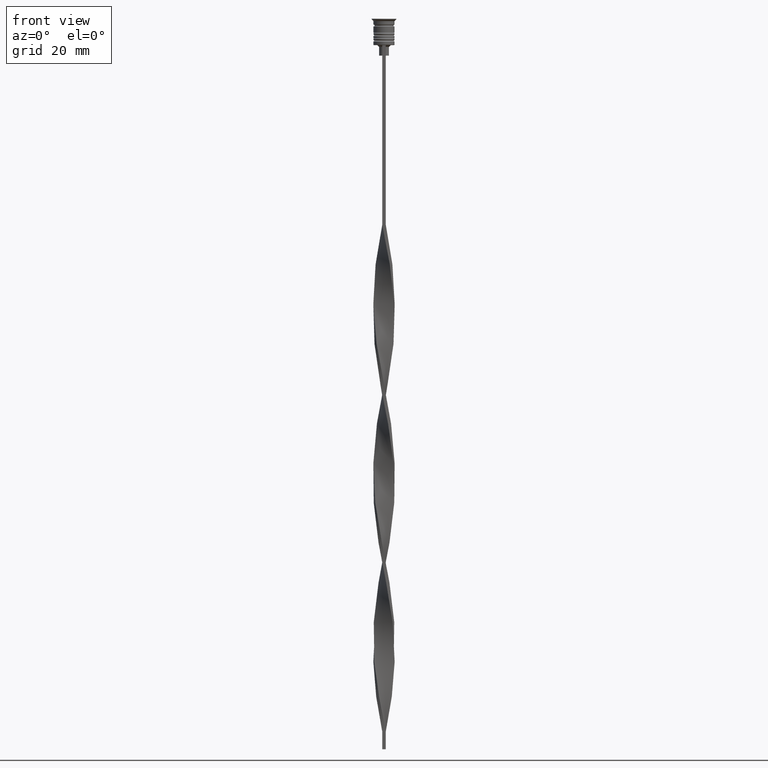
[diagram: clean part render]
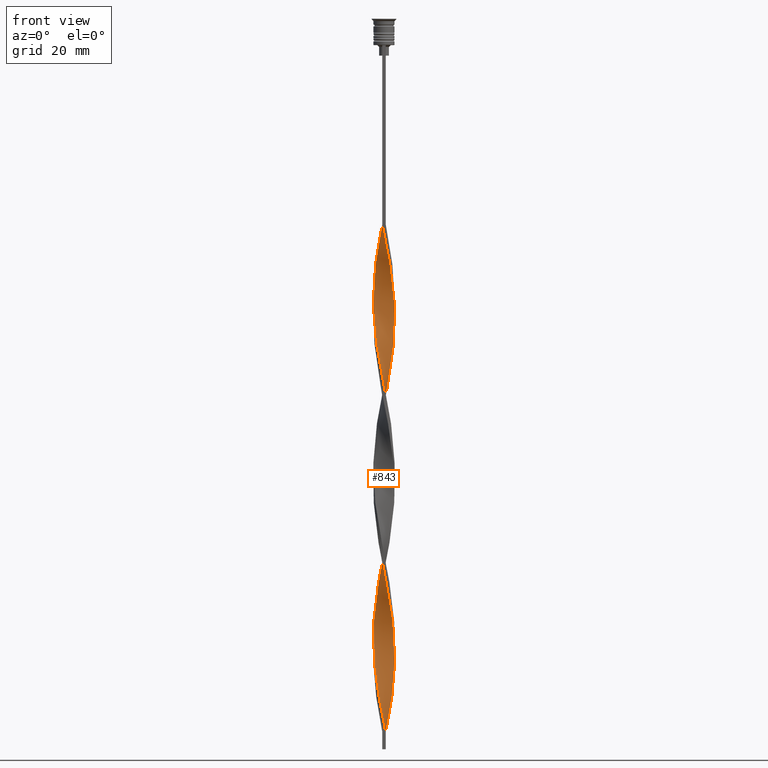
[diagram: same view with one face highlighted and labeled with its STEP entity id]
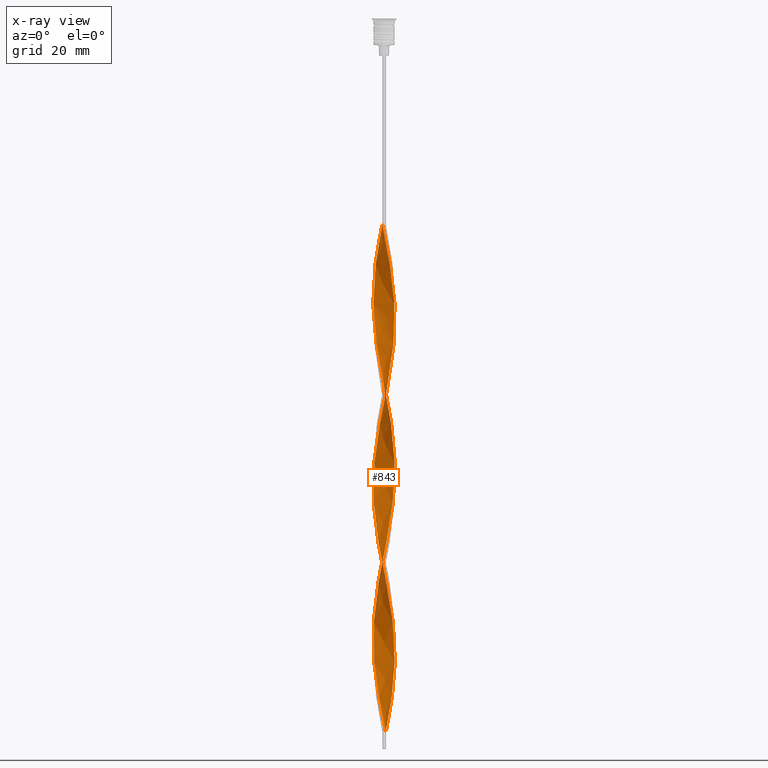
[diagram: x-ray of the same camera — body ghosted, the highlighted face saturated]
A machine part, front view. The second image highlights one B-rep face of the part: STEP entity #843.
The next image is the same camera in x-ray: the body ghosted, the highlighted face saturated — about 0% of this face is hidden behind the body in this view.
In plain terms, the highlighted face is a freeform B-spline surface patch.
Its self-contained STEP definition (entity closure, byte-faithful):
#12 = CARTESIAN_POINT ( 'NONE',  ( -2.628006467404950364, -1.556601299988307208, -88.14705882352940591 ) ) ;
#16 = CARTESIAN_POINT ( 'NONE',  ( 3.053821120486486240, 0.06001802994261470209, -181.3235294117646959 ) ) ;
#48 = CARTESIAN_POINT ( 'NONE',  ( -2.462620696176917701, -1.784796713007145819, -185.5588235294117396 ) ) ;
#54 = CARTESIAN_POINT ( 'NONE',  ( 2.390591389550001722, 1.880178929838698387, -191.2058823529411598 ) ) ;
#56 = CARTESIAN_POINT ( 'NONE',  ( 2.390591389550001722, 1.880178929838698387, -95.20588235294117396 ) ) ;
#66 = CARTESIAN_POINT ( 'NONE',  ( -2.908359051953456564, 0.8896334216520835891, -171.4411764705882035 ) ) ;
#78 = CARTESIAN_POINT ( 'NONE',  ( 1.307479267857235561, 2.760420903407855064, -102.2647058823529420 ) ) ;
#89 = CARTESIAN_POINT ( 'NONE',  ( -1.154187920767260067, -2.813867488627520785, -194.0294117647058556 ) ) ;
#94 = CARTESIAN_POINT ( 'NONE',  ( 3.033336708616754418, -0.2210620097576117826, -179.9117647058823195 ) ) ;
#104 = CARTESIAN_POINT ( 'NONE',  ( -3.022308424554498441, 0.3400761486298386482, -174.2647058823529278 ) ) ;
#109 = CARTESIAN_POINT ( 'NONE',  ( -2.908359051953456564, 0.8896334216520835891, -75.44117647058823195 ) ) ;
#127 = CARTESIAN_POINT ( 'NONE',  ( 1.042735103291661414, -2.857044540143419908, -109.3235294117646959 ) ) ;
#146 = CARTESIAN_POINT ( 'NONE',  ( -2.825922375284401156, 1.159132575987103841, -74.02941176470586981 ) ) ;
#147 = CARTESIAN_POINT ( 'NONE',  ( -1.792442958670038555, -2.473170806831126889, -147.4411764705882320 ) ) ;
#164 = CARTESIAN_POINT ( 'NONE',  ( -2.869284401559882625, -1.047202283617009844, -85.32352941176469585 ) ) ;
#165 = CARTESIAN_POINT ( 'NONE',  ( 0.5000000000000004441, 3.000000000000000000, -106.4999999999999858 ) ) ;
#186 = CARTESIAN_POINT ( 'NONE',  ( 2.869284401559882625, -1.047202283617009400, -175.6764705882353041 ) ) ;
#197 = CARTESIAN_POINT ( 'NONE',  ( 0.5000000000000004441, 3.000000000000000000, -202.4999999999999716 ) ) ;
#203 = CARTESIAN_POINT ( 'NONE',  ( 1.792442958670038999, -2.473170806831127333, -113.5588235294117396 ) ) ;
#204 = CARTESIAN_POINT ( 'NONE',  ( -2.564815624776292768, -1.658658015008195763, -141.7941176470588118 ) ) ;
#207 = CARTESIAN_POINT ( 'NONE',  ( -3.012852296747023484, 0.5021420494578379135, -130.5000000000000000 ) ) ;
#218 = CARTESIAN_POINT ( 'NONE',  ( -2.092734363651090668, -2.206912522777888963, -188.3823529411764355 ) ) ;
#219 = CARTESIAN_POINT ( 'NONE',  ( 2.216367154323709787, -2.101699844669203454, -116.3823529411764781 ) ) ;
#224 = CARTESIAN_POINT ( 'NONE',  ( -3.022308424554498441, -0.3400761486298386482, -134.7352941176470722 ) ) ;
#239 = CARTESIAN_POINT ( 'NONE',  ( -2.297234924948885926, -2.012992126025985762, -186.9705882352941444 ) ) ;
#240 = CARTESIAN_POINT ( 'NONE',  ( -1.307479267857234895, 2.760420903407855509, -62.73529411764705799 ) ) ;
#243 = CARTESIAN_POINT ( 'NONE',  ( -3.033336708616754418, 0.2210620097576128096, -131.9117647058823479 ) ) ;
#258 = CARTESIAN_POINT ( 'NONE',  ( 0.6174888838592811346, 2.978037521306644120, -148.8529411764705799 ) ) ;
#259 = CARTESIAN_POINT ( 'NONE',  ( -1.888233802353294744, -2.400832919529793941, -93.79411764705881183 ) ) ;
#263 = CARTESIAN_POINT ( 'NONE',  ( -2.990795728622511973, -0.6201342673170625597, -136.1470588235294201 ) ) ;
#275 = CARTESIAN_POINT ( 'NONE',  ( -1.651582472329342632, -2.553874573485255706, -191.2058823529411598 ) ) ;
#276 = CARTESIAN_POINT ( 'NONE',  ( -2.941068349153452832, -0.7746721665374231014, -83.91176470588234793 ) ) ;
#280 = CARTESIAN_POINT ( 'NONE',  ( -1.549961113263637058, -2.616795855119490533, -148.8529411764705799 ) ) ;
#283 = CARTESIAN_POINT ( 'NONE',  ( 0.7779909387260891540, 2.953668176878986973, -105.0882352941176521 ) ) ;
#295 = CARTESIAN_POINT ( 'NONE',  ( 2.462620696176917257, 1.784796713007146707, -137.5588235294117680 ) ) ;
#299 = CARTESIAN_POINT ( 'NONE',  ( 1.792442958670039665, 2.473170806831126445, -195.4411764705882604 ) ) ;
#320 = CARTESIAN_POINT ( 'NONE',  ( 2.869284401559882625, -1.047202283617009400, -79.67647058823528994 ) ) ;
#330 = CARTESIAN_POINT ( 'NONE',  ( -2.990795728622511973, 0.6201342673170636699, -172.8529411764705799 ) ) ;
#335 = CARTESIAN_POINT ( 'NONE',  ( 0.05976200360776001697, -3.040794057959990582, -61.32352941176470296 ) ) ;
#336 = CARTESIAN_POINT ( 'NONE',  ( 2.748645434482416050, -1.301901791802658082, -78.26470588235292780 ) ) ;
#347 = CARTESIAN_POINT ( 'NONE',  ( -1.549961113263636836, 2.616795855119490533, -160.1470588235293917 ) ) ;
#349 = EDGE_LOOP ( 'NONE', ( #3084, #1320, #1204, #713 ) ) ;
#353 = CARTESIAN_POINT ( 'NONE',  ( 2.825922375284401156, 1.159132575987104286, -186.9705882352941444 ) ) ;
#355 = CARTESIAN_POINT ( 'NONE',  ( 1.792442958670039443, 2.473170806831126001, -99.44117647058823195 ) ) ;
#365 = CARTESIAN_POINT ( 'NONE',  ( 1.888233802353293633, 2.400832919529794385, -141.7941176470588118 ) ) ;
#372 = CARTESIAN_POINT ( 'NONE',  ( 1.042735103291662080, 2.857044540143419908, -199.6764705882352757 ) ) ;
#388 = CARTESIAN_POINT ( 'NONE',  ( 1.307479267857234673, -2.760420903407855509, -110.7352941176470438 ) ) ;
#404 = CARTESIAN_POINT ( 'NONE',  ( -2.628006467404950364, -1.556601299988307208, -88.14705882352940591 ) ) ;
#421 = CARTESIAN_POINT ( 'NONE',  ( -2.390591389550001278, 1.880178929838698831, -69.79411764705881183 ) ) ;
#422 = CARTESIAN_POINT ( 'NONE',  ( -2.825922375284401156, -1.159132575987104063, -138.9705882352941160 ) ) ;
#442 = CARTESIAN_POINT ( 'NONE',  ( 2.748645434482416050, -1.301901791802658082, -174.2647058823529278 ) ) ;
#456 = CARTESIAN_POINT ( 'NONE',  ( -1.154187920767260067, -2.813867488627520785, -98.02941176470588402 ) ) ;
#457 = CARTESIAN_POINT ( 'NONE',  ( 0.05976200360776001697, -3.040794057959990582, -157.3235294117646959 ) ) ;
#474 = CARTESIAN_POINT ( 'NONE',  ( -2.908359051953456564, 0.8896334216520835891, -171.4411764705882035 ) ) ;
#475 = CARTESIAN_POINT ( 'NONE',  ( 2.462620696176917701, -1.784796713007146041, -171.4411764705882035 ) ) ;
#481 = CARTESIAN_POINT ( 'NONE',  ( 1.414931142305390077, -2.706916227440719691, -164.3823529411764923 ) ) ;
#493 = CARTESIAN_POINT ( 'NONE',  ( 2.748645434482416050, 1.301901791802658082, -134.7352941176470722 ) ) ;
#494 = CARTESIAN_POINT ( 'NONE',  ( -1.651582472329342188, 2.553874573485256150, -117.7941176470588118 ) ) ;
#497 = CARTESIAN_POINT ( 'NONE',  ( -0.05976200360775937165, 3.040794057959990582, -109.3235294117646959 ) ) ;
#509 = CARTESIAN_POINT ( 'NONE',  ( 3.033336708616754418, 0.2210620097576116716, -129.0882352941176521 ) ) ;
#510 = CARTESIAN_POINT ( 'NONE',  ( -1.042735103291662080, 2.857044540143419908, -61.32352941176470296 ) ) ;
#516 = CARTESIAN_POINT ( 'NONE',  ( 1.307479267857235339, 2.760420903407855064, -102.2647058823529420 ) ) ;
#531 = CARTESIAN_POINT ( 'NONE',  ( -1.792442958670039221, 2.473170806831127333, -161.5588235294117680 ) ) ;
#532 = CARTESIAN_POINT ( 'NONE',  ( 1.549961113263637280, -2.616795855119490533, -112.1470588235294059 ) ) ;
#536 = CARTESIAN_POINT ( 'NONE',  ( -2.092734363651089780, 2.206912522777889851, -120.6176470588235219 ) ) ;
#552 = CARTESIAN_POINT ( 'NONE',  ( 3.022308424554498885, -0.3400761486298397585, -126.2647058823529420 ) ) ;
#553 = CARTESIAN_POINT ( 'NONE',  ( -0.7779909387260893761, 2.953668176878985641, -59.91176470588236214 ) ) ;
#557 = CARTESIAN_POINT ( 'NONE',  ( -1.651582472329342188, 2.553874573485256150, -117.7941176470588118 ) ) ;
#561 = CARTESIAN_POINT ( 'NONE',  ( -0.5000000000000001110, -3.000000000000000000, -58.50000000000000000 ) ) ;
#571 = CARTESIAN_POINT ( 'NONE',  ( 2.628006467404950808, 1.556601299988306542, -136.1470588235294201 ) ) ;
#576 = CARTESIAN_POINT ( 'NONE',  ( 0.3415330684894307689, -3.035256292798965916, -62.73529411764705799 ) ) ;
#591 = CARTESIAN_POINT ( 'NONE',  ( -2.825922375284401156, 1.159132575987104063, -74.02941176470586981 ) ) ;
#597 = CARTESIAN_POINT ( 'NONE',  ( 3.053821120486486240, 0.06001802994261470209, -85.32352941176469585 ) ) ;
#598 = CARTESIAN_POINT ( 'NONE',  ( 2.628006467404950364, -1.556601299988307430, -76.85294117647059409 ) ) ;
#610 = CARTESIAN_POINT ( 'NONE',  ( -2.748645434482415606, -1.301901791802658526, -182.7352941176470438 ) ) ;
#618 = VERTEX_POINT ( 'NONE', #2176 ) ;
#619 = CARTESIAN_POINT ( 'NONE',  ( 2.869284401559882625, -1.047202283617009400, -79.67647058823528994 ) ) ;
#620 = CARTESIAN_POINT ( 'NONE',  ( 0.8934446992291309453, -2.920818749814322324, -65.55882352941178226 ) ) ;
#648 = CARTESIAN_POINT ( 'NONE',  ( 1.651582472329341522, 2.553874573485256150, -143.2058823529411882 ) ) ;
#654 = CARTESIAN_POINT ( 'NONE',  ( 3.012852296747023484, -0.5021420494578375804, -178.5000000000000000 ) ) ;
#683 = CARTESIAN_POINT ( 'NONE',  ( -1.651582472329342632, -2.553874573485255706, -191.2058823529411598 ) ) ;
#687 = CARTESIAN_POINT ( 'NONE',  ( -0.3415330684894313795, -3.035256292798966360, -102.2647058823529420 ) ) ;
#705 = CARTESIAN_POINT ( 'NONE',  ( 1.792442958670039443, 2.473170806831126001, -195.4411764705882604 ) ) ;
#713 = ORIENTED_EDGE ( 'NONE', *, *, #1461, .F. ) ;
#722 = CARTESIAN_POINT ( 'NONE',  ( 1.154187920767260067, -2.813867488627520785, -162.9705882352940876 ) ) ;
#743 = CARTESIAN_POINT ( 'NONE',  ( -2.092734363651090668, -2.206912522777888963, -92.38235294117646390 ) ) ;
#744 = CARTESIAN_POINT ( 'NONE',  ( -0.2220090612739108182, -3.046331823121014803, -155.9117647058824048 ) ) ;
#760 = CARTESIAN_POINT ( 'NONE',  ( -2.390591389550001278, 1.880178929838698831, -165.7941176470588118 ) ) ;
#761 = CARTESIAN_POINT ( 'NONE',  ( 0.3415330684894307689, -3.035256292798965916, -158.7352941176470154 ) ) ;
#768 = CARTESIAN_POINT ( 'NONE',  ( 0.8934446992291309453, -2.920818749814322324, -161.5588235294117680 ) ) ;
#781 = CARTESIAN_POINT ( 'NONE',  ( 2.695369000030346740, -1.408895295497649913, -120.6176470588235219 ) ) ;
#782 = CARTESIAN_POINT ( 'NONE',  ( 1.888233802353294744, -2.400832919529793941, -167.2058823529411882 ) ) ;
#788 = CARTESIAN_POINT ( 'NONE',  ( -2.869284401559883069, 1.047202283617008511, -127.6764705882352757 ) ) ;
#802 = CARTESIAN_POINT ( 'NONE',  ( -2.216367154323710231, 2.101699844669202566, -164.3823529411764923 ) ) ;
#803 = CARTESIAN_POINT ( 'NONE',  ( -1.549961113263636836, 2.616795855119490533, -64.14705882352940591 ) ) ;
#806 = CARTESIAN_POINT ( 'NONE',  ( 2.908359051953456564, 0.8896334216520833671, -89.55882352941175384 ) ) ;
#819 = CARTESIAN_POINT ( 'NONE',  ( -0.8934446992291313894, -2.920818749814322324, -195.4411764705882604 ) ) ;
#820 = CARTESIAN_POINT ( 'NONE',  ( -2.869284401559882625, -1.047202283617009844, -85.32352941176469585 ) ) ;
#825 = CARTESIAN_POINT ( 'NONE',  ( 0.05976200360776001697, -3.040794057959990582, -157.3235294117646959 ) ) ;
#840 = CARTESIAN_POINT ( 'NONE',  ( 2.990795728622512417, -0.6201342673170634479, -124.8529411764705799 ) ) ;
#841 = CARTESIAN_POINT ( 'NONE',  ( -2.564815624776293657, 1.658658015008195097, -71.20588235294118817 ) ) ;
#843 = ADVANCED_FACE ( 'NONE', ( #3433 ), #1259, .T. ) ;
#845 = CARTESIAN_POINT ( 'NONE',  ( 3.012852296747023484, -0.5021420494578375804, -82.49999999999998579 ) ) ;
#848 = CARTESIAN_POINT ( 'NONE',  ( 2.462620696176917701, -1.784796713007146041, -75.44117647058823195 ) ) ;
#861 = CARTESIAN_POINT ( 'NONE',  ( -0.8934446992291313894, -2.920818749814322324, -99.44117647058823195 ) ) ;
#880 = CARTESIAN_POINT ( 'NONE',  ( 2.390591389550001278, -1.880178929838698831, -117.7941176470588118 ) ) ;
#884 = CARTESIAN_POINT ( 'NONE',  ( 2.004405056496874504, 2.287435325750164505, -194.0294117647058556 ) ) ;
#886 = CARTESIAN_POINT ( 'NONE',  ( 2.941068349153452388, -0.7746721665374233234, -81.08823529411763786 ) ) ;
#900 = CARTESIAN_POINT ( 'NONE',  ( -2.825922375284401156, 1.159132575987104063, -170.0294117647058556 ) ) ;
#907 = CARTESIAN_POINT ( 'NONE',  ( 1.888233802353294744, -2.400832919529793941, -71.20588235294118817 ) ) ;
#920 = CARTESIAN_POINT ( 'NONE',  ( -0.2220090612739109570, 3.046331823121015692, -153.0882352941176237 ) ) ;
#925 = CARTESIAN_POINT ( 'NONE',  ( 1.307479267857235339, 2.760420903407855064, -198.2647058823529562 ) ) ;
#927 = CARTESIAN_POINT ( 'NONE',  ( 2.004405056496874504, 2.287435325750164505, -98.02941176470588402 ) ) ;
#938 = CARTESIAN_POINT ( 'NONE',  ( -2.628006467404950364, -1.556601299988307208, -184.1470588235293917 ) ) ;
#956 = CARTESIAN_POINT ( 'NONE',  ( -0.8934446992291313894, -2.920818749814322324, -195.4411764705882604 ) ) ;
#962 = CARTESIAN_POINT ( 'NONE',  ( -0.6174888838592809126, -2.978037521306644120, -100.8529411764705941 ) ) ;
#974 = CARTESIAN_POINT ( 'NONE',  ( -2.004405056496874504, 2.287435325750164505, -162.9705882352940876 ) ) ;
#979 = CARTESIAN_POINT ( 'NONE',  ( -3.053821120486486240, 0.06001802994261448004, -79.67647058823528994 ) ) ;
#996 = CARTESIAN_POINT ( 'NONE',  ( 2.990795728622511973, 0.6201342673170632258, -184.1470588235293917 ) ) ;
#1012 = CARTESIAN_POINT ( 'NONE',  ( -2.297234924948885926, -2.012992126025985762, -90.97058823529411598 ) ) ;
#1013 = CARTESIAN_POINT ( 'NONE',  ( -2.748645434482415606, 1.301901791802659192, -126.2647058823529420 ) ) ;
#1031 = CARTESIAN_POINT ( 'NONE',  ( -1.414931142305390077, -2.706916227440719691, -96.61764705882355031 ) ) ;
#1032 = CARTESIAN_POINT ( 'NONE',  ( -2.941068349153452832, 0.7746721665374232124, -129.0882352941176521 ) ) ;
#1053 = CARTESIAN_POINT ( 'NONE',  ( -2.004405056496874504, 2.287435325750164505, -162.9705882352940876 ) ) ;
#1054 = CARTESIAN_POINT ( 'NONE',  ( 1.414931142305390299, -2.706916227440719691, -164.3823529411764923 ) ) ;
#1068 = CARTESIAN_POINT ( 'NONE',  ( 3.053821120486486684, -0.06001802994261339758, -127.6764705882352757 ) ) ;
#1069 = CARTESIAN_POINT ( 'NONE',  ( 3.033336708616754418, -0.2210620097576117826, -179.9117647058823195 ) ) ;
#1075 = CARTESIAN_POINT ( 'NONE',  ( 2.825922375284401156, 1.159132575987104286, -90.97058823529411598 ) ) ;
#1083 = CARTESIAN_POINT ( 'NONE',  ( -0.5000000000000001110, -3.000000000000000000, -58.50000000000000000 ) ) ;
#1087 = CARTESIAN_POINT ( 'NONE',  ( 2.390591389550001278, -1.880178929838698831, -117.7941176470588118 ) ) ;
#1088 = CARTESIAN_POINT ( 'NONE',  ( -0.05976200360776012799, -3.040794057959990582, -103.6764705882352899 ) ) ;
#1093 = CARTESIAN_POINT ( 'NONE',  ( -2.216367154323710231, -2.101699844669202566, -144.6176470588235361 ) ) ;
#1108 = CARTESIAN_POINT ( 'NONE',  ( -3.022308424554498441, 0.3400761486298386482, -174.2647058823529278 ) ) ;
#1109 = CARTESIAN_POINT ( 'NONE',  ( 1.042735103291662080, 2.857044540143419908, -199.6764705882352757 ) ) ;
#1113 = CARTESIAN_POINT ( 'NONE',  ( 1.042735103291662080, 2.857044540143419908, -103.6764705882352899 ) ) ;
#1126 = CARTESIAN_POINT ( 'NONE',  ( -2.990795728622512417, 0.6201342673170636699, -172.8529411764705799 ) ) ;
#1127 = CARTESIAN_POINT ( 'NONE',  ( -1.414931142305390299, -2.706916227440719691, -96.61764705882353610 ) ) ;
#1131 = CARTESIAN_POINT ( 'NONE',  ( 1.888233802353294744, -2.400832919529793941, -167.2058823529411882 ) ) ;
#1146 = CARTESIAN_POINT ( 'NONE',  ( 3.033336708616754418, 0.2210620097576116716, -129.0882352941176521 ) ) ;
#1150 = CARTESIAN_POINT ( 'NONE',  ( 1.792442958670039665, 2.473170806831126445, -99.44117647058823195 ) ) ;
#1154 = CARTESIAN_POINT ( 'NONE',  ( 1.888233802353294744, -2.400832919529793941, -71.20588235294118817 ) ) ;
#1165 = CARTESIAN_POINT ( 'NONE',  ( -1.651582472329342632, -2.553874573485255706, -95.20588235294117396 ) ) ;
#1170 = CARTESIAN_POINT ( 'NONE',  ( 2.216367154323710231, 2.101699844669202566, -192.6176470588235077 ) ) ;
#1173 = CARTESIAN_POINT ( 'NONE',  ( -0.5000000000000001110, -3.000000000000000000, -58.50000000000000000 ) ) ;
#1181 = CARTESIAN_POINT ( 'NONE',  ( -1.414931142305390299, -2.706916227440719691, -192.6176470588235077 ) ) ;
#1186 = CARTESIAN_POINT ( 'NONE',  ( 2.564815624776293657, 1.658658015008195097, -189.7941176470588118 ) ) ;
#1190 = CARTESIAN_POINT ( 'NONE',  ( 0.05976200360776001697, -3.040794057959990582, -61.32352941176470296 ) ) ;
#1203 = CARTESIAN_POINT ( 'NONE',  ( -2.297234924948886370, -2.012992126025985762, -186.9705882352941444 ) ) ;
#1204 = ORIENTED_EDGE ( 'NONE', *, *, #2549, .F. ) ;
#1210 = CARTESIAN_POINT ( 'NONE',  ( 1.154187920767260067, -2.813867488627520785, -66.97058823529411598 ) ) ;
#1216 = EDGE_CURVE ( 'NONE', #3203, #3543, #2514, .T. ) ;
#1222 = CARTESIAN_POINT ( 'NONE',  ( -3.012852296747023484, -0.5021420494578371363, -178.4999999999999716 ) ) ;
#1231 = CARTESIAN_POINT ( 'NONE',  ( 3.053821120486486240, 0.06001802994261470209, -181.3235294117646674 ) ) ;
#1239 = CARTESIAN_POINT ( 'NONE',  ( -0.5000000000000001110, 3.000000000000000000, -58.50000000000000000 ) ) ;
#1258 = CARTESIAN_POINT ( 'NONE',  ( -1.888233802353294744, -2.400832919529793941, -189.7941176470587834 ) ) ;
#1259 =( BOUNDED_SURFACE ( )  B_SPLINE_SURFACE ( 1, 2, ( 
 ( #561, #3492, #335, #576, #1437, #3191, #1210, #2019, #2645, #907, #3454, #3471, #848, #2868, #2054, #619, #886, #2320, #1775, #597, #3170, #1456, #3210, #1494, #2360, #2608, #56, #3513, #927, #355, #1516, #78, #2003, #283, #165, #1582, #2467, #3011, #3615, #2448, #2218, #1655, #494, #1317, #1618, #3650, #2734, #3046, #1013, #3596, #1032, #3370, #1936, #3297, #2486, #3068, #3315, #422, #2185, #204, #2166, #1638, #1898, #147, #3336, #2379, #1861, #3634, #3354, #744, #457, #761, #2770, #1298, #722, #1054, #1879, #782, #2503, #3088, #475, #3029, #442, #186, #1599, #2805, #1069, #1231, #3531, #996, #1336, #2201, #2147, #1917, #2750, #2789, #1356, #705, #3708, #3690, #1109, #3406, #1672 ),
 ( #1689, #553, #510, #240, #803, #2841, #1430, #3464, #2561, #841, #2273, #591, #2599, #1956, #3105, #1746, #1727, #2256, #276, #820, #3164, #12, #1390, #2822, #2029, #259, #1165, #1127, #3426, #861, #1372, #1993, #1088, #2295, #2541, #3144, #1973, #3124, #532, #2879, #1708, #219, #880, #1410, #2522, #2862, #3182, #2236, #2583, #3727, #1146, #3389, #3445, #2013, #3669, #571, #295, #1449, #2313, #365, #648, #1804, #3556, #2620, #2656, #2676, #1821, #920, #1785, #2636, #3523, #1527, #347, #1767, #974, #1486, #2935, #3201, #1508, #900, #66, #330, #104, #3275, #2124, #1222, #3240, #1542, #610, #938, #48, #1203, #2372, #1258, #683, #1181, #89, #956, #2352, #2047, #2087, #2973, #3504 ) ),
 .UNSPECIFIED., .F., .F., .F. ) 
 B_SPLINE_SURFACE_WITH_KNOTS ( ( 2, 2 ),
 ( 3, 2, 2, 2, 2, 2, 2, 2, 2, 2, 2, 2, 2, 2, 2, 2, 2, 2, 2, 2, 2, 2, 2, 2, 2, 2, 2, 2, 2, 2, 2, 2, 2, 2, 2, 2, 2, 2, 2, 2, 2, 2, 2, 2, 2, 2, 2, 2, 2, 2, 2, 3 ),
 ( 0.000000000000000000, 1.000000000000000000 ),
 ( 0.000000000000000000, 0.01470588235294117627, 0.02941176470588235253, 0.04411764705882353227, 0.05882352941176470507, 0.07352941176470588480, 0.08823529411764706454, 0.1029411764705882304, 0.1176470588235294101, 0.1323529411764705899, 0.1470588235294117696, 0.1617647058823529493, 0.1764705882352941291, 0.1911764705882352811, 0.2058823529411764608, 0.2205882352941176405, 0.2352941176470588203, 0.2500000000000000000, 0.2647058823529411797, 0.2794117647058823595, 0.2941176470588235392, 0.3088235294117647189, 0.3235294117647058987, 0.3382352941176470784, 0.3529411764705882582, 0.3676470588235294379, 0.3823529411764705621, 0.3970588235294117418, 0.4117647058823529216, 0.4264705882352941013, 0.4411764705882352811, 0.4558823529411764608, 0.4705882352941176405, 0.4852941176470588203, 0.5000000000000000000, 0.5147058823529411242, 0.5294117647058823595, 0.5441176470588234837, 0.5588235294117647189, 0.5735294117647058432, 0.5882352941176470784, 0.6029411764705882026, 0.6176470588235294379, 0.6323529411764705621, 0.6470588235294117974, 0.6617647058823529216, 0.6764705882352941568, 0.6911764705882352811, 0.7058823529411765163, 0.7205882352941176405, 0.7352941176470588758, 0.7500000000000000000 ),
 .UNSPECIFIED. ) 
 GEOMETRIC_REPRESENTATION_ITEM ( )  RATIONAL_B_SPLINE_SURFACE ( (
 ( 1.000000000000000000, 0.9957341762950344677, 1.000000000000000000, 0.9957341762950344677, 1.000000000000000000, 0.9957341762950344677, 1.000000000000000000, 0.9957341762950344677, 1.000000000000000000, 0.9957341762950344677, 1.000000000000000000, 0.9957341762950344677, 1.000000000000000000, 0.9957341762950344677, 1.000000000000000000, 0.9957341762950344677, 1.000000000000000000, 0.9957341762950344677, 1.000000000000000000, 0.9957341762950344677, 1.000000000000000000, 0.9957341762950344677, 1.000000000000000000, 0.9957341762950344677, 1.000000000000000000, 0.9957341762950344677, 1.000000000000000000, 0.9957341762950344677, 1.000000000000000000, 0.9957341762950344677, 1.000000000000000000, 0.9957341762950344677, 1.000000000000000000, 0.9957341762950344677, 1.000000000000000000, 0.9957341762950344677, 1.000000000000000000, 0.9957341762950344677, 1.000000000000000000, 0.9957341762950344677, 1.000000000000000000, 0.9957341762950344677, 1.000000000000000000, 0.9957341762950344677, 1.000000000000000000, 0.9957341762950344677, 1.000000000000000000, 0.9957341762950344677, 1.000000000000000000, 0.9957341762950344677, 1.000000000000000000, 0.9957341762950344677, 1.000000000000000000, 0.9957341762950344677, 1.000000000000000000, 0.9957341762950344677, 1.000000000000000000, 0.9957341762950344677, 1.000000000000000000, 0.9957341762950344677, 1.000000000000000000, 0.9957341762950344677, 1.000000000000000000, 0.9957341762950344677, 1.000000000000000000, 0.9957341762950344677, 1.000000000000000000, 0.9957341762950344677, 1.000000000000000000, 0.9957341762950344677, 1.000000000000000000, 0.9957341762950344677, 1.000000000000000000, 0.9957341762950344677, 1.000000000000000000, 0.9957341762950344677, 1.000000000000000000, 0.9957341762950344677, 1.000000000000000000, 0.9957341762950344677, 1.000000000000000000, 0.9957341762950344677, 1.000000000000000000, 0.9957341762950344677, 1.000000000000000000, 0.9957341762950344677, 1.000000000000000000, 0.9957341762950344677, 1.000000000000000000, 0.9957341762950344677, 1.000000000000000000, 0.9957341762950344677, 1.000000000000000000, 0.9957341762950344677, 1.000000000000000000, 0.9957341762950344677, 1.000000000000000000, 0.9957341762950344677, 1.000000000000000000, 0.9957341762950344677, 1.000000000000000000, 0.9957341762950344677, 1.000000000000000000),
 ( 1.000000000000000000, 0.9957341762950344677, 1.000000000000000000, 0.9957341762950344677, 1.000000000000000000, 0.9957341762950344677, 1.000000000000000000, 0.9957341762950344677, 1.000000000000000000, 0.9957341762950344677, 1.000000000000000000, 0.9957341762950344677, 1.000000000000000000, 0.9957341762950344677, 1.000000000000000000, 0.9957341762950344677, 1.000000000000000000, 0.9957341762950344677, 1.000000000000000000, 0.9957341762950344677, 1.000000000000000000, 0.9957341762950344677, 1.000000000000000000, 0.9957341762950344677, 1.000000000000000000, 0.9957341762950344677, 1.000000000000000000, 0.9957341762950344677, 1.000000000000000000, 0.9957341762950344677, 1.000000000000000000, 0.9957341762950344677, 1.000000000000000000, 0.9957341762950344677, 1.000000000000000000, 0.9957341762950344677, 1.000000000000000000, 0.9957341762950344677, 1.000000000000000000, 0.9957341762950344677, 1.000000000000000000, 0.9957341762950344677, 1.000000000000000000, 0.9957341762950344677, 1.000000000000000000, 0.9957341762950344677, 1.000000000000000000, 0.9957341762950344677, 1.000000000000000000, 0.9957341762950344677, 1.000000000000000000, 0.9957341762950344677, 1.000000000000000000, 0.9957341762950344677, 1.000000000000000000, 0.9957341762950344677, 1.000000000000000000, 0.9957341762950344677, 1.000000000000000000, 0.9957341762950344677, 1.000000000000000000, 0.9957341762950344677, 1.000000000000000000, 0.9957341762950344677, 1.000000000000000000, 0.9957341762950344677, 1.000000000000000000, 0.9957341762950344677, 1.000000000000000000, 0.9957341762950344677, 1.000000000000000000, 0.9957341762950344677, 1.000000000000000000, 0.9957341762950344677, 1.000000000000000000, 0.9957341762950344677, 1.000000000000000000, 0.9957341762950344677, 1.000000000000000000, 0.9957341762950344677, 1.000000000000000000, 0.9957341762950344677, 1.000000000000000000, 0.9957341762950344677, 1.000000000000000000, 0.9957341762950344677, 1.000000000000000000, 0.9957341762950344677, 1.000000000000000000, 0.9957341762950344677, 1.000000000000000000, 0.9957341762950344677, 1.000000000000000000, 0.9957341762950344677, 1.000000000000000000, 0.9957341762950344677, 1.000000000000000000, 0.9957341762950344677, 1.000000000000000000, 0.9957341762950344677, 1.000000000000000000, 0.9957341762950344677, 1.000000000000000000) ) ) 
 REPRESENTATION_ITEM ( '' )  SURFACE ( )  );
#1281 = CARTESIAN_POINT ( 'NONE',  ( 1.549961113263637280, -2.616795855119490533, -112.1470588235294059 ) ) ;
#1298 = CARTESIAN_POINT ( 'NONE',  ( 0.8934446992291309453, -2.920818749814322324, -161.5588235294117396 ) ) ;
#1316 = CARTESIAN_POINT ( 'NONE',  ( -0.5000000000000001110, 3.000000000000000000, -58.50000000000000000 ) ) ;
#1317 = CARTESIAN_POINT ( 'NONE',  ( -1.888233802353294744, 2.400832919529793497, -119.2058823529411455 ) ) ;
#1320 = ORIENTED_EDGE ( 'NONE', *, *, #3196, .T. ) ;
#1336 = CARTESIAN_POINT ( 'NONE',  ( 2.908359051953456564, 0.8896334216520833671, -185.5588235294117396 ) ) ;
#1355 = CARTESIAN_POINT ( 'NONE',  ( -0.2220090612739109570, 3.046331823121016136, -153.0882352941176237 ) ) ;
#1356 = CARTESIAN_POINT ( 'NONE',  ( 2.004405056496874504, 2.287435325750164505, -194.0294117647058556 ) ) ;
#1359 = CARTESIAN_POINT ( 'NONE',  ( -0.5000000000000001110, -3.000000000000000000, -154.4999999999999716 ) ) ;
#1370 = CARTESIAN_POINT ( 'NONE',  ( -1.154187920767260067, -2.813867488627520785, -194.0294117647058556 ) ) ;
#1372 = CARTESIAN_POINT ( 'NONE',  ( -0.6174888838592809126, -2.978037521306644120, -100.8529411764705941 ) ) ;
#1378 = CARTESIAN_POINT ( 'NONE',  ( -2.564815624776292768, -1.658658015008195763, -141.7941176470587834 ) ) ;
#1389 = CARTESIAN_POINT ( 'NONE',  ( -3.053821120486486240, 0.06001802994261448004, -175.6764705882353041 ) ) ;
#1390 = CARTESIAN_POINT ( 'NONE',  ( -2.462620696176917701, -1.784796713007145819, -89.55882352941175384 ) ) ;
#1396 = CARTESIAN_POINT ( 'NONE',  ( -1.792442958670038777, -2.473170806831127333, -147.4411764705882320 ) ) ;
#1409 = CARTESIAN_POINT ( 'NONE',  ( 2.092734363651091112, 2.206912522777888519, -140.3823529411764639 ) ) ;
#1410 = CARTESIAN_POINT ( 'NONE',  ( 2.564815624776293657, -1.658658015008194653, -119.2058823529411455 ) ) ;
#1415 = CARTESIAN_POINT ( 'NONE',  ( -2.004405056496875837, -2.287435325750163617, -146.0294117647058556 ) ) ;
#1429 = CARTESIAN_POINT ( 'NONE',  ( -0.05976200360776012799, -3.040794057959990582, -199.6764705882352757 ) ) ;
#1430 = CARTESIAN_POINT ( 'NONE',  ( -2.004405056496874504, 2.287435325750164505, -66.97058823529411598 ) ) ;
#1434 = CARTESIAN_POINT ( 'NONE',  ( -1.154187920767260289, 2.813867488627520341, -114.9705882352941018 ) ) ;
#1437 = CARTESIAN_POINT ( 'NONE',  ( 0.6174888838592809126, -2.978037521306644120, -64.14705882352940591 ) ) ;
#1444 = DIRECTION ( 'NONE',  ( 0.000000000000000000, 1.000000000000000000, 0.000000000000000000 ) ) ;
#1449 = CARTESIAN_POINT ( 'NONE',  ( 2.297234924948886370, 2.012992126025985318, -138.9705882352941160 ) ) ;
#1456 = CARTESIAN_POINT ( 'NONE',  ( 2.990795728622511973, 0.6201342673170632258, -88.14705882352940591 ) ) ;
#1461 = EDGE_CURVE ( 'NONE', #3203, #3564, #2074, .T. ) ;
#1477 = CARTESIAN_POINT ( 'NONE',  ( 2.941068349153452388, -0.7746721665374233234, -81.08823529411763786 ) ) ;
#1486 = CARTESIAN_POINT ( 'NONE',  ( -2.216367154323710675, 2.101699844669202566, -164.3823529411764923 ) ) ;
#1494 = CARTESIAN_POINT ( 'NONE',  ( 2.825922375284401156, 1.159132575987104286, -90.97058823529413019 ) ) ;
#1508 = CARTESIAN_POINT ( 'NONE',  ( -2.695369000030346740, 1.408895295497649469, -168.6176470588235077 ) ) ;
#1516 = CARTESIAN_POINT ( 'NONE',  ( 1.549961113263636836, 2.616795855119490533, -100.8529411764705941 ) ) ;
#1527 = CARTESIAN_POINT ( 'NONE',  ( -1.307479267857234895, 2.760420903407855509, -158.7352941176470154 ) ) ;
#1542 = CARTESIAN_POINT ( 'NONE',  ( -2.869284401559882625, -1.047202283617009844, -181.3235294117646674 ) ) ;
#1549 = CARTESIAN_POINT ( 'NONE',  ( 0.5000000000000004441, 3.000000000000000000, -202.4999999999999716 ) ) ;
#1562 = CARTESIAN_POINT ( 'NONE',  ( -1.888233802353294744, -2.400832919529793941, -93.79411764705882604 ) ) ;
#1581 = CARTESIAN_POINT ( 'NONE',  ( -0.7779909387260893761, 2.953668176878985641, -59.91176470588236214 ) ) ;
#1582 = CARTESIAN_POINT ( 'NONE',  ( 0.2220090612739105962, 3.046331823121014803, -107.9117647058823621 ) ) ;
#1598 = CARTESIAN_POINT ( 'NONE',  ( -2.216367154323710231, 2.101699844669202566, -68.38235294117646390 ) ) ;
#1599 = CARTESIAN_POINT ( 'NONE',  ( 2.941068349153452388, -0.7746721665374233234, -177.0882352941176237 ) ) ;
#1618 = CARTESIAN_POINT ( 'NONE',  ( -2.092734363651089780, 2.206912522777889851, -120.6176470588235219 ) ) ;
#1637 = CARTESIAN_POINT ( 'NONE',  ( 2.908359051953456564, -0.8896334216520829230, -123.4411764705882177 ) ) ;
#1638 = CARTESIAN_POINT ( 'NONE',  ( -2.216367154323710675, -2.101699844669202566, -144.6176470588235361 ) ) ;
#1643 = CARTESIAN_POINT ( 'NONE',  ( -3.053821120486486240, -0.06001802994261502128, -133.3235294117646959 ) ) ;
#1654 = CARTESIAN_POINT ( 'NONE',  ( 0.8934446992291303902, 2.920818749814322324, -147.4411764705882320 ) ) ;
#1655 = CARTESIAN_POINT ( 'NONE',  ( -1.414931142305389633, 2.706916227440719691, -116.3823529411764781 ) ) ;
#1658 = CARTESIAN_POINT ( 'NONE',  ( -0.3415330684894307689, 3.035256292798965916, -110.7352941176470438 ) ) ;
#1670 = CARTESIAN_POINT ( 'NONE',  ( -2.825922375284401156, 1.159132575987103841, -170.0294117647058840 ) ) ;
#1672 = CARTESIAN_POINT ( 'NONE',  ( 0.5000000000000004441, 3.000000000000000000, -202.4999999999999716 ) ) ;
#1677 = CARTESIAN_POINT ( 'NONE',  ( -0.6174888838592813567, 2.978037521306644120, -112.1470588235294059 ) ) ;
#1688 = CARTESIAN_POINT ( 'NONE',  ( -0.3415330684894313795, -3.035256292798966360, -198.2647058823529562 ) ) ;
#1689 = CARTESIAN_POINT ( 'NONE',  ( -0.5000000000000001110, 3.000000000000000000, -58.50000000000000000 ) ) ;
#1694 = CARTESIAN_POINT ( 'NONE',  ( -2.825922375284401156, -1.159132575987103841, -138.9705882352941160 ) ) ;
#1707 = CARTESIAN_POINT ( 'NONE',  ( -0.5000000000000001110, 3.000000000000000000, -154.4999999999999716 ) ) ;
#1708 = CARTESIAN_POINT ( 'NONE',  ( 2.004405056496874948, -2.287435325750164061, -114.9705882352941018 ) ) ;
#1713 = CARTESIAN_POINT ( 'NONE',  ( 2.004405056496874504, 2.287435325750164505, -98.02941176470588402 ) ) ;
#1727 = CARTESIAN_POINT ( 'NONE',  ( -3.033336708616754862, -0.2210620097576112830, -81.08823529411763786 ) ) ;
#1746 = CARTESIAN_POINT ( 'NONE',  ( -3.053821120486486240, 0.06001802994261448004, -79.67647058823528994 ) ) ;
#1754 = CARTESIAN_POINT ( 'NONE',  ( 2.092734363651089780, -2.206912522777889407, -72.61764705882352189 ) ) ;
#1767 = CARTESIAN_POINT ( 'NONE',  ( -1.792442958670038999, 2.473170806831126889, -161.5588235294117396 ) ) ;
#1773 = CARTESIAN_POINT ( 'NONE',  ( 0.7779909387260891540, 2.953668176878986529, -201.0882352941176237 ) ) ;
#1775 = CARTESIAN_POINT ( 'NONE',  ( 3.033336708616754418, -0.2210620097576117826, -83.91176470588234793 ) ) ;
#1785 = CARTESIAN_POINT ( 'NONE',  ( -0.5000000000000001110, 3.000000000000000000, -154.4999999999999716 ) ) ;
#1804 = CARTESIAN_POINT ( 'NONE',  ( 1.414931142305390743, 2.706916227440719691, -144.6176470588235361 ) ) ;
#1821 = CARTESIAN_POINT ( 'NONE',  ( 0.05976200360775915654, 3.040794057959990582, -151.6764705882353041 ) ) ;
#1825 = CARTESIAN_POINT ( 'NONE',  ( 0.2220090612739113178, -3.046331823121015692, -105.0882352941176521 ) ) ;
#1861 = CARTESIAN_POINT ( 'NONE',  ( -1.042735103291661192, -2.857044540143419908, -151.6764705882353041 ) ) ;
#1878 = CARTESIAN_POINT ( 'NONE',  ( -3.022308424554498441, 0.3400761486298386482, -78.26470588235292780 ) ) ;
#1879 = CARTESIAN_POINT ( 'NONE',  ( 1.651582472329342188, -2.553874573485256150, -165.7941176470588118 ) ) ;
#1897 = CARTESIAN_POINT ( 'NONE',  ( -3.033336708616754862, -0.2210620097576112830, -81.08823529411763786 ) ) ;
#1898 = CARTESIAN_POINT ( 'NONE',  ( -2.004405056496875837, -2.287435325750163617, -146.0294117647058556 ) ) ;
#1916 = CARTESIAN_POINT ( 'NONE',  ( 2.216367154323709343, -2.101699844669203454, -116.3823529411764781 ) ) ;
#1917 = CARTESIAN_POINT ( 'NONE',  ( 2.564815624776293657, 1.658658015008195097, -189.7941176470587834 ) ) ;
#1922 = CARTESIAN_POINT ( 'NONE',  ( -2.908359051953456120, -0.8896334216520842553, -137.5588235294117680 ) ) ;
#1935 = CARTESIAN_POINT ( 'NONE',  ( 1.414931142305390521, 2.706916227440719691, -144.6176470588235361 ) ) ;
#1936 = CARTESIAN_POINT ( 'NONE',  ( -3.033336708616754418, 0.2210620097576128096, -131.9117647058823479 ) ) ;
#1942 = CARTESIAN_POINT ( 'NONE',  ( 2.216367154323710231, 2.101699844669202566, -96.61764705882355031 ) ) ;
#1955 = CARTESIAN_POINT ( 'NONE',  ( 2.869284401559882625, 1.047202283617010066, -133.3235294117646959 ) ) ;
#1956 = CARTESIAN_POINT ( 'NONE',  ( -2.990795728622511973, 0.6201342673170636699, -76.85294117647060830 ) ) ;
#1959 = CARTESIAN_POINT ( 'NONE',  ( 2.695369000030346740, 1.408895295497649247, -92.38235294117646390 ) ) ;
#1971 = CARTESIAN_POINT ( 'NONE',  ( -2.564815624776293657, 1.658658015008195097, -167.2058823529411882 ) ) ;
#1973 = CARTESIAN_POINT ( 'NONE',  ( 1.042735103291661414, -2.857044540143419908, -109.3235294117646959 ) ) ;
#1979 = CARTESIAN_POINT ( 'NONE',  ( -2.941068349153452832, 0.7746721665374232124, -129.0882352941176521 ) ) ;
#1992 = CARTESIAN_POINT ( 'NONE',  ( 2.941068349153452832, 0.7746721665374219912, -131.9117647058823479 ) ) ;
#1993 = CARTESIAN_POINT ( 'NONE',  ( -0.3415330684894314350, -3.035256292798966360, -102.2647058823529420 ) ) ;
#2000 = CARTESIAN_POINT ( 'NONE',  ( -1.307479267857235561, -2.760420903407854620, -150.2647058823528994 ) ) ;
#2003 = CARTESIAN_POINT ( 'NONE',  ( 1.042735103291662080, 2.857044540143419908, -103.6764705882352899 ) ) ;
#2013 = CARTESIAN_POINT ( 'NONE',  ( 2.869284401559882625, 1.047202283617010066, -133.3235294117647243 ) ) ;
#2019 = CARTESIAN_POINT ( 'NONE',  ( 1.414931142305390299, -2.706916227440719691, -68.38235294117646390 ) ) ;
#2029 = CARTESIAN_POINT ( 'NONE',  ( -2.092734363651090668, -2.206912522777888963, -92.38235294117646390 ) ) ;
#2034 = CARTESIAN_POINT ( 'NONE',  ( 0.5000000000000004441, 3.000000000000000000, -202.4999999999999716 ) ) ;
#2038 = CARTESIAN_POINT ( 'NONE',  ( 0.6174888838592809126, -2.978037521306644120, -64.14705882352940591 ) ) ;
#2047 = CARTESIAN_POINT ( 'NONE',  ( -0.3415330684894314350, -3.035256292798966360, -198.2647058823529562 ) ) ;
#2054 = CARTESIAN_POINT ( 'NONE',  ( 2.748645434482416050, -1.301901791802658082, -78.26470588235292780 ) ) ;
#2074 =( BOUNDED_CURVE ( )  B_SPLINE_CURVE ( 2, ( #1173, #2321, #1190, #3472, #2038, #620, #2341, #3493, #3211, #1154, #1754, #2646, #3192, #598, #336, #320, #1477, #845, #3393, #3128, #2529, #3092, #806, #1075, #1959, #2507, #3108, #1942, #1713, #1150, #3731, #516, #1113, #3150, #2222, #2547, #497, #1658, #1677, #2865, #1434, #2828, #557, #3373, #536, #2259, #2808, #2243, #3693, #788, #1979, #207, #243, #1643, #224, #263, #1922, #1694, #2848, #1378, #3673, #1093, #1415, #1396, #280, #2000, #2588, #2566, #1359, #3410, #825, #3711, #2301, #768, #3072, #481, #2792, #1131, #2280, #3654, #3430, #3451, #2318, #3248, #3469, #654, #94, #16, #2924, #2643, #2885, #353, #2961, #1186, #54, #1170, #884, #299, #2337, #925, #372, #1773, #2034 ),
 .UNSPECIFIED., .F., .T. ) 
 B_SPLINE_CURVE_WITH_KNOTS ( ( 3, 2, 2, 2, 2, 2, 2, 2, 2, 2, 2, 2, 2, 2, 2, 2, 2, 2, 2, 2, 2, 2, 2, 2, 2, 2, 2, 2, 2, 2, 2, 2, 2, 2, 2, 2, 2, 2, 2, 2, 2, 2, 2, 2, 2, 2, 2, 2, 2, 2, 2, 3 ),
 ( 0.000000000000000000, 0.01470588235294117453, 0.02941176470588234906, 0.04411764705882353227, 0.05882352941176469813, 0.07352941176470588480, 0.08823529411764706454, 0.1029411764705882443, 0.1176470588235293963, 0.1323529411764705899, 0.1470588235294117696, 0.1617647058823529493, 0.1764705882352941291, 0.1911764705882352811, 0.2058823529411764885, 0.2205882352941176405, 0.2352941176470587925, 0.2500000000000000000, 0.2647058823529411797, 0.2794117647058823595, 0.2941176470588235392, 0.3088235294117647189, 0.3235294117647058987, 0.3382352941176470229, 0.3529411764705882582, 0.3676470588235294379, 0.3823529411764705621, 0.3970588235294117418, 0.4117647058823529771, 0.4264705882352941013, 0.4411764705882352811, 0.4558823529411764608, 0.4705882352941175850, 0.4852941176470588203, 0.5000000000000000000, 0.5147058823529411242, 0.5294117647058823595, 0.5441176470588234837, 0.5588235294117647189, 0.5735294117647058432, 0.5882352941176470784, 0.6029411764705882026, 0.6176470588235294379, 0.6323529411764705621, 0.6470588235294117974, 0.6617647058823529216, 0.6764705882352940458, 0.6911764705882351700, 0.7058823529411765163, 0.7205882352941176405, 0.7352941176470588758, 0.7500000000000000000 ),
 .UNSPECIFIED. ) 
 CURVE ( )  GEOMETRIC_REPRESENTATION_ITEM ( )  RATIONAL_B_SPLINE_CURVE ( ( 1.000000000000000000, 0.9957341762950344677, 1.000000000000000000, 0.9957341762950344677, 1.000000000000000000, 0.9957341762950344677, 1.000000000000000000, 0.9957341762950344677, 1.000000000000000000, 0.9957341762950344677, 1.000000000000000000, 0.9957341762950344677, 1.000000000000000000, 0.9957341762950344677, 1.000000000000000000, 0.9957341762950344677, 1.000000000000000000, 0.9957341762950344677, 1.000000000000000000, 0.9957341762950344677, 1.000000000000000000, 0.9957341762950344677, 1.000000000000000000, 0.9957341762950344677, 1.000000000000000000, 0.9957341762950344677, 1.000000000000000000, 0.9957341762950344677, 1.000000000000000000, 0.9957341762950344677, 1.000000000000000000, 0.9957341762950344677, 1.000000000000000000, 0.9957341762950344677, 1.000000000000000000, 0.9957341762950344677, 1.000000000000000000, 0.9957341762950344677, 1.000000000000000000, 0.9957341762950344677, 1.000000000000000000, 0.9957341762950344677, 1.000000000000000000, 0.9957341762950344677, 1.000000000000000000, 0.9957341762950344677, 1.000000000000000000, 0.9957341762950344677, 1.000000000000000000, 0.9957341762950344677, 1.000000000000000000, 0.9957341762950344677, 1.000000000000000000, 0.9957341762950344677, 1.000000000000000000, 0.9957341762950344677, 1.000000000000000000, 0.9957341762950344677, 1.000000000000000000, 0.9957341762950344677, 1.000000000000000000, 0.9957341762950344677, 1.000000000000000000, 0.9957341762950344677, 1.000000000000000000, 0.9957341762950344677, 1.000000000000000000, 0.9957341762950344677, 1.000000000000000000, 0.9957341762950344677, 1.000000000000000000, 0.9957341762950344677, 1.000000000000000000, 0.9957341762950344677, 1.000000000000000000, 0.9957341762950344677, 1.000000000000000000, 0.9957341762950344677, 1.000000000000000000, 0.9957341762950344677, 1.000000000000000000, 0.9957341762950344677, 1.000000000000000000, 0.9957341762950344677, 1.000000000000000000, 0.9957341762950344677, 1.000000000000000000, 0.9957341762950344677, 1.000000000000000000, 0.9957341762950344677, 1.000000000000000000, 0.9957341762950344677, 1.000000000000000000, 0.9957341762950344677, 1.000000000000000000, 0.9957341762950344677, 1.000000000000000000, 0.9957341762950344677, 1.000000000000000000, 0.9957341762950344677, 1.000000000000000000, 0.9957341762950344677, 1.000000000000000000 ) ) 
 REPRESENTATION_ITEM ( '' )  );
#2087 = CARTESIAN_POINT ( 'NONE',  ( -0.05976200360776012799, -3.040794057959990582, -199.6764705882352757 ) ) ;
#2109 = CARTESIAN_POINT ( 'NONE',  ( -1.549961113263636836, 2.616795855119490533, -64.14705882352940591 ) ) ;
#2112 = B_SPLINE_CURVE_WITH_KNOTS ( 'NONE', 3,
 ( #1549, #2134, #2380, #3232 ),
 .UNSPECIFIED., .F., .F.,
 ( 4, 4 ),
 ( 0.000000000000000000, 1.000000000000000000 ),
 .UNSPECIFIED. ) ;
#2124 = CARTESIAN_POINT ( 'NONE',  ( -3.033336708616754862, -0.2210620097576112830, -177.0882352941176237 ) ) ;
#2130 = CARTESIAN_POINT ( 'NONE',  ( -2.748645434482415606, -1.301901791802658526, -86.73529411764704378 ) ) ;
#2134 = CARTESIAN_POINT ( 'NONE',  ( 0.5000000000000002220, 1.000000000000000000, -202.4999999999999716 ) ) ;
#2146 = CARTESIAN_POINT ( 'NONE',  ( -1.307479267857234673, 2.760420903407855509, -62.73529411764705799 ) ) ;
#2147 = CARTESIAN_POINT ( 'NONE',  ( 2.695369000030346740, 1.408895295497649247, -188.3823529411764355 ) ) ;
#2166 = CARTESIAN_POINT ( 'NONE',  ( -2.390591389550000834, -1.880178929838698831, -143.2058823529411882 ) ) ;
#2176 = CARTESIAN_POINT ( 'NONE',  ( 0.4999999999999997780, -3.000000000000000000, -202.4999999999999716 ) ) ;
#2184 = CARTESIAN_POINT ( 'NONE',  ( -3.012852296747023484, -0.5021420494578371363, -82.49999999999998579 ) ) ;
#2185 = CARTESIAN_POINT ( 'NONE',  ( -2.695369000030347184, -1.408895295497648581, -140.3823529411764639 ) ) ;
#2200 = CARTESIAN_POINT ( 'NONE',  ( 0.4999999999999997780, -3.000000000000000000, -202.4999999999999716 ) ) ;
#2201 = CARTESIAN_POINT ( 'NONE',  ( 2.825922375284401156, 1.159132575987104286, -186.9705882352941444 ) ) ;
#2217 = CARTESIAN_POINT ( 'NONE',  ( -1.414931142305390077, -2.706916227440719691, -192.6176470588235077 ) ) ;
#2218 = CARTESIAN_POINT ( 'NONE',  ( -1.154187920767260289, 2.813867488627520341, -114.9705882352941018 ) ) ;
#2222 = CARTESIAN_POINT ( 'NONE',  ( 0.5000000000000004441, 3.000000000000000000, -106.4999999999999858 ) ) ;
#2235 = CARTESIAN_POINT ( 'NONE',  ( -1.307479267857234673, 2.760420903407855509, -158.7352941176470438 ) ) ;
#2236 = CARTESIAN_POINT ( 'NONE',  ( 2.990795728622511973, -0.6201342673170634479, -124.8529411764705799 ) ) ;
#2243 = CARTESIAN_POINT ( 'NONE',  ( -2.628006467404950364, 1.556601299988307430, -124.8529411764705799 ) ) ;
#2255 = CARTESIAN_POINT ( 'NONE',  ( -1.888233802353294744, -2.400832919529793941, -189.7941176470588118 ) ) ;
#2256 = CARTESIAN_POINT ( 'NONE',  ( -3.012852296747023484, -0.5021420494578371363, -82.49999999999998579 ) ) ;
#2259 = CARTESIAN_POINT ( 'NONE',  ( -2.297234924948885926, 2.012992126025986206, -122.0294117647058840 ) ) ;
#2271 = CARTESIAN_POINT ( 'NONE',  ( -2.628006467404950364, -1.556601299988307208, -184.1470588235293917 ) ) ;
#2273 = CARTESIAN_POINT ( 'NONE',  ( -2.695369000030346740, 1.408895295497649469, -72.61764705882352189 ) ) ;
#2280 = CARTESIAN_POINT ( 'NONE',  ( 2.092734363651089780, -2.206912522777889407, -168.6176470588235077 ) ) ;
#2295 = CARTESIAN_POINT ( 'NONE',  ( 0.2220090612739113178, -3.046331823121015248, -105.0882352941176521 ) ) ;
#2301 = CARTESIAN_POINT ( 'NONE',  ( 0.6174888838592809126, -2.978037521306644120, -160.1470588235293917 ) ) ;
#2312 = CARTESIAN_POINT ( 'NONE',  ( -0.5000000000000001110, -3.000000000000000000, -58.50000000000000000 ) ) ;
#2313 = CARTESIAN_POINT ( 'NONE',  ( 2.092734363651091112, 2.206912522777888519, -140.3823529411764639 ) ) ;
#2318 = CARTESIAN_POINT ( 'NONE',  ( 2.748645434482416050, -1.301901791802658082, -174.2647058823529278 ) ) ;
#2320 = CARTESIAN_POINT ( 'NONE',  ( 3.012852296747023484, -0.5021420494578375804, -82.49999999999998579 ) ) ;
#2321 = CARTESIAN_POINT ( 'NONE',  ( -0.2220090612739108182, -3.046331823121015248, -59.91176470588236214 ) ) ;
#2337 = CARTESIAN_POINT ( 'NONE',  ( 1.549961113263636836, 2.616795855119490533, -196.8529411764705515 ) ) ;
#2341 = CARTESIAN_POINT ( 'NONE',  ( 1.154187920767260067, -2.813867488627520785, -66.97058823529411598 ) ) ;
#2352 = CARTESIAN_POINT ( 'NONE',  ( -0.6174888838592809126, -2.978037521306644120, -196.8529411764705515 ) ) ;
#2360 = CARTESIAN_POINT ( 'NONE',  ( 2.695369000030346740, 1.408895295497649247, -92.38235294117646390 ) ) ;
#2372 = CARTESIAN_POINT ( 'NONE',  ( -2.092734363651090668, -2.206912522777888963, -188.3823529411764355 ) ) ;
#2379 = CARTESIAN_POINT ( 'NONE',  ( -1.307479267857235783, -2.760420903407854620, -150.2647058823529278 ) ) ;
#2380 = CARTESIAN_POINT ( 'NONE',  ( 0.5000000000000000000, -1.000000000000000000, -202.4999999999999716 ) ) ;
#2412 = CARTESIAN_POINT ( 'NONE',  ( -1.042735103291662080, 2.857044540143419908, -61.32352941176470296 ) ) ;
#2420 = VECTOR ( 'NONE', #1444, 1000.000000000000000 ) ;
#2432 = CARTESIAN_POINT ( 'NONE',  ( -2.462620696176917701, -1.784796713007145819, -89.55882352941175384 ) ) ;
#2448 = CARTESIAN_POINT ( 'NONE',  ( -0.8934446992291307232, 2.920818749814322324, -113.5588235294117538 ) ) ;
#2467 = CARTESIAN_POINT ( 'NONE',  ( -0.05976200360775937165, 3.040794057959990582, -109.3235294117646959 ) ) ;
#2486 = CARTESIAN_POINT ( 'NONE',  ( -3.022308424554498441, -0.3400761486298386482, -134.7352941176470722 ) ) ;
#2502 = CARTESIAN_POINT ( 'NONE',  ( -2.695369000030346740, 1.408895295497649469, -168.6176470588235077 ) ) ;
#2503 = CARTESIAN_POINT ( 'NONE',  ( 2.092734363651089780, -2.206912522777889407, -168.6176470588235077 ) ) ;
#2507 = CARTESIAN_POINT ( 'NONE',  ( 2.564815624776293657, 1.658658015008195097, -93.79411764705882604 ) ) ;
#2514 = LINE ( 'NONE', #1083, #2420 ) ;
#2521 = CARTESIAN_POINT ( 'NONE',  ( 2.297234924948885926, 2.012992126025985318, -138.9705882352941160 ) ) ;
#2522 = CARTESIAN_POINT ( 'NONE',  ( 2.695369000030346740, -1.408895295497649913, -120.6176470588235219 ) ) ;
#2529 = CARTESIAN_POINT ( 'NONE',  ( 3.022308424554498885, 0.3400761486298390923, -86.73529411764704378 ) ) ;
#2540 = CARTESIAN_POINT ( 'NONE',  ( -3.033336708616754862, -0.2210620097576112830, -177.0882352941176237 ) ) ;
#2541 = CARTESIAN_POINT ( 'NONE',  ( 0.4999999999999997780, -3.000000000000000000, -106.4999999999999858 ) ) ;
#2547 = CARTESIAN_POINT ( 'NONE',  ( 0.2220090612739105962, 3.046331823121015248, -107.9117647058823621 ) ) ;
#2549 = EDGE_CURVE ( 'NONE', #3564, #618, #2112, .T. ) ;
#2560 = CARTESIAN_POINT ( 'NONE',  ( 1.888233802353293633, 2.400832919529794385, -141.7941176470587834 ) ) ;
#2561 = CARTESIAN_POINT ( 'NONE',  ( -2.390591389550001278, 1.880178929838698831, -69.79411764705881183 ) ) ;
#2566 = CARTESIAN_POINT ( 'NONE',  ( -0.7779909387260895981, -2.953668176878986085, -153.0882352941176237 ) ) ;
#2583 = CARTESIAN_POINT ( 'NONE',  ( 3.022308424554498885, -0.3400761486298397585, -126.2647058823529420 ) ) ;
#2588 = CARTESIAN_POINT ( 'NONE',  ( -1.042735103291661192, -2.857044540143419908, -151.6764705882353041 ) ) ;
#2599 = CARTESIAN_POINT ( 'NONE',  ( -2.908359051953456564, 0.8896334216520835891, -75.44117647058823195 ) ) ;
#2608 = CARTESIAN_POINT ( 'NONE',  ( 2.564815624776293657, 1.658658015008195097, -93.79411764705881183 ) ) ;
#2620 = CARTESIAN_POINT ( 'NONE',  ( 0.8934446992291303902, 2.920818749814322324, -147.4411764705882320 ) ) ;
#2636 = CARTESIAN_POINT ( 'NONE',  ( -0.7779909387260893761, 2.953668176878985641, -155.9117647058824048 ) ) ;
#2643 = CARTESIAN_POINT ( 'NONE',  ( 2.990795728622512417, 0.6201342673170633368, -184.1470588235293917 ) ) ;
#2645 = CARTESIAN_POINT ( 'NONE',  ( 1.651582472329342188, -2.553874573485256150, -69.79411764705881183 ) ) ;
#2646 = CARTESIAN_POINT ( 'NONE',  ( 2.297234924948885926, -2.012992126025985318, -74.02941176470586981 ) ) ;
#2656 = CARTESIAN_POINT ( 'NONE',  ( 0.6174888838592811346, 2.978037521306644120, -148.8529411764705799 ) ) ;
#2676 = CARTESIAN_POINT ( 'NONE',  ( 0.3415330684894318236, 3.035256292798965916, -150.2647058823529278 ) ) ;
#2697 = CARTESIAN_POINT ( 'NONE',  ( -1.792442958670039221, 2.473170806831127333, -65.55882352941178226 ) ) ;
#2714 = CARTESIAN_POINT ( 'NONE',  ( 0.4999999999999997780, -3.000000000000000000, -106.4999999999999858 ) ) ;
#2733 = CARTESIAN_POINT ( 'NONE',  ( -2.564815624776293657, 1.658658015008195097, -71.20588235294118817 ) ) ;
#2734 = CARTESIAN_POINT ( 'NONE',  ( -2.462620696176918589, 1.784796713007145375, -123.4411764705882177 ) ) ;
#2749 = CARTESIAN_POINT ( 'NONE',  ( -2.695369000030346740, 1.408895295497649469, -72.61764705882352189 ) ) ;
#2750 = CARTESIAN_POINT ( 'NONE',  ( 2.390591389550001722, 1.880178929838698387, -191.2058823529411598 ) ) ;
#2769 = CARTESIAN_POINT ( 'NONE',  ( -0.8934446992291313894, -2.920818749814322324, -99.44117647058823195 ) ) ;
#2770 = CARTESIAN_POINT ( 'NONE',  ( 0.6174888838592809126, -2.978037521306644120, -160.1470588235293917 ) ) ;
#2788 = CARTESIAN_POINT ( 'NONE',  ( 3.012852296747023484, 0.5021420494578368032, -130.5000000000000000 ) ) ;
#2789 = CARTESIAN_POINT ( 'NONE',  ( 2.216367154323710675, 2.101699844669202566, -192.6176470588235077 ) ) ;
#2792 = CARTESIAN_POINT ( 'NONE',  ( 1.651582472329342188, -2.553874573485256150, -165.7941176470588118 ) ) ;
#2804 = CARTESIAN_POINT ( 'NONE',  ( -2.462620696176917701, -1.784796713007145819, -185.5588235294117396 ) ) ;
#2805 = CARTESIAN_POINT ( 'NONE',  ( 3.012852296747023484, -0.5021420494578375804, -178.4999999999999716 ) ) ;
#2808 = CARTESIAN_POINT ( 'NONE',  ( -2.462620696176918589, 1.784796713007145375, -123.4411764705882177 ) ) ;
#2821 = CARTESIAN_POINT ( 'NONE',  ( -2.869284401559882625, -1.047202283617009844, -181.3235294117646959 ) ) ;
#2822 = CARTESIAN_POINT ( 'NONE',  ( -2.297234924948886370, -2.012992126025985762, -90.97058823529413019 ) ) ;
#2828 = CARTESIAN_POINT ( 'NONE',  ( -1.414931142305389411, 2.706916227440719691, -116.3823529411764781 ) ) ;
#2840 = CARTESIAN_POINT ( 'NONE',  ( 2.462620696176917257, 1.784796713007146707, -137.5588235294117680 ) ) ;
#2841 = CARTESIAN_POINT ( 'NONE',  ( -1.792442958670038999, 2.473170806831126889, -65.55882352941179647 ) ) ;
#2848 = CARTESIAN_POINT ( 'NONE',  ( -2.695369000030347184, -1.408895295497648581, -140.3823529411764639 ) ) ;
#2861 = CARTESIAN_POINT ( 'NONE',  ( -3.012852296747023484, -0.5021420494578371363, -178.5000000000000000 ) ) ;
#2862 = CARTESIAN_POINT ( 'NONE',  ( 2.825922375284401156, -1.159132575987104508, -122.0294117647058982 ) ) ;
#2865 = CARTESIAN_POINT ( 'NONE',  ( -0.8934446992291307232, 2.920818749814322324, -113.5588235294117396 ) ) ;
#2868 = CARTESIAN_POINT ( 'NONE',  ( 2.628006467404950364, -1.556601299988307652, -76.85294117647060830 ) ) ;
#2879 = CARTESIAN_POINT ( 'NONE',  ( 1.792442958670038777, -2.473170806831126889, -113.5588235294117538 ) ) ;
#2885 = CARTESIAN_POINT ( 'NONE',  ( 2.908359051953456564, 0.8896334216520833671, -185.5588235294117396 ) ) ;
#2924 = CARTESIAN_POINT ( 'NONE',  ( 3.022308424554498885, 0.3400761486298390923, -182.7352941176470438 ) ) ;
#2935 = CARTESIAN_POINT ( 'NONE',  ( -2.390591389550001278, 1.880178929838698831, -165.7941176470588118 ) ) ;
#2961 = CARTESIAN_POINT ( 'NONE',  ( 2.695369000030346740, 1.408895295497649247, -188.3823529411764355 ) ) ;
#2973 = CARTESIAN_POINT ( 'NONE',  ( 0.2220090612739113178, -3.046331823121015248, -201.0882352941176237 ) ) ;
#2977 = CARTESIAN_POINT ( 'NONE',  ( 0.7779909387260895981, -2.953668176878985641, -107.9117647058823621 ) ) ;
#3011 = CARTESIAN_POINT ( 'NONE',  ( -0.3415330684894307689, 3.035256292798965916, -110.7352941176470438 ) ) ;
#3029 = CARTESIAN_POINT ( 'NONE',  ( 2.628006467404950364, -1.556601299988307652, -172.8529411764705799 ) ) ;
#3045 = CARTESIAN_POINT ( 'NONE',  ( -2.941068349153452832, -0.7746721665374231014, -83.91176470588234793 ) ) ;
#3046 = CARTESIAN_POINT ( 'NONE',  ( -2.628006467404950364, 1.556601299988307430, -124.8529411764705799 ) ) ;
#3056 =( BOUNDED_CURVE ( )  B_SPLINE_CURVE ( 2, ( #1316, #1581, #2412, #2146, #2109, #2697, #3314, #1598, #421, #2733, #2749, #146, #109, #3561, #1878, #979, #1897, #2184, #3045, #164, #2130, #404, #2432, #1012, #743, #1562, #3280, #1031, #456, #2769, #962, #687, #3262, #1825, #2714, #2977, #127, #388, #1281, #203, #3104, #1916, #1087, #3369, #781, #3087, #1637, #840, #552, #1068, #509, #2788, #1992, #1955, #493, #3707, #2840, #2521, #1409, #2560, #3353, #1935, #3689, #1654, #258, #3425, #3649, #1355, #1707, #3668, #3143, #2235, #3388, #531, #1053, #802, #760, #1971, #2502, #1670, #474, #1126, #1108, #1389, #2540, #2861, #3067, #2821, #3405, #2271, #2804, #239, #218, #2255, #275, #2217, #1370, #819, #3123, #1688, #1429, #3633, #2200 ),
 .UNSPECIFIED., .F., .T. ) 
 B_SPLINE_CURVE_WITH_KNOTS ( ( 3, 2, 2, 2, 2, 2, 2, 2, 2, 2, 2, 2, 2, 2, 2, 2, 2, 2, 2, 2, 2, 2, 2, 2, 2, 2, 2, 2, 2, 2, 2, 2, 2, 2, 2, 2, 2, 2, 2, 2, 2, 2, 2, 2, 2, 2, 2, 2, 2, 2, 2, 3 ),
 ( 0.000000000000000000, 0.01470588235294117453, 0.02941176470588234906, 0.04411764705882353227, 0.05882352941176469813, 0.07352941176470588480, 0.08823529411764706454, 0.1029411764705882443, 0.1176470588235293963, 0.1323529411764705899, 0.1470588235294117696, 0.1617647058823529493, 0.1764705882352941291, 0.1911764705882352811, 0.2058823529411764885, 0.2205882352941176405, 0.2352941176470587925, 0.2500000000000000000, 0.2647058823529411797, 0.2794117647058823595, 0.2941176470588235392, 0.3088235294117647189, 0.3235294117647058987, 0.3382352941176470229, 0.3529411764705882582, 0.3676470588235294379, 0.3823529411764705621, 0.3970588235294117418, 0.4117647058823529771, 0.4264705882352941013, 0.4411764705882352811, 0.4558823529411764608, 0.4705882352941175850, 0.4852941176470588203, 0.5000000000000000000, 0.5147058823529411242, 0.5294117647058823595, 0.5441176470588234837, 0.5588235294117647189, 0.5735294117647058432, 0.5882352941176470784, 0.6029411764705882026, 0.6176470588235294379, 0.6323529411764705621, 0.6470588235294117974, 0.6617647058823529216, 0.6764705882352940458, 0.6911764705882351700, 0.7058823529411765163, 0.7205882352941176405, 0.7352941176470588758, 0.7500000000000000000 ),
 .UNSPECIFIED. ) 
 CURVE ( )  GEOMETRIC_REPRESENTATION_ITEM ( )  RATIONAL_B_SPLINE_CURVE ( ( 1.000000000000000000, 0.9957341762950344677, 1.000000000000000000, 0.9957341762950344677, 1.000000000000000000, 0.9957341762950344677, 1.000000000000000000, 0.9957341762950344677, 1.000000000000000000, 0.9957341762950344677, 1.000000000000000000, 0.9957341762950344677, 1.000000000000000000, 0.9957341762950344677, 1.000000000000000000, 0.9957341762950344677, 1.000000000000000000, 0.9957341762950344677, 1.000000000000000000, 0.9957341762950344677, 1.000000000000000000, 0.9957341762950344677, 1.000000000000000000, 0.9957341762950344677, 1.000000000000000000, 0.9957341762950344677, 1.000000000000000000, 0.9957341762950344677, 1.000000000000000000, 0.9957341762950344677, 1.000000000000000000, 0.9957341762950344677, 1.000000000000000000, 0.9957341762950344677, 1.000000000000000000, 0.9957341762950344677, 1.000000000000000000, 0.9957341762950344677, 1.000000000000000000, 0.9957341762950344677, 1.000000000000000000, 0.9957341762950344677, 1.000000000000000000, 0.9957341762950344677, 1.000000000000000000, 0.9957341762950344677, 1.000000000000000000, 0.9957341762950344677, 1.000000000000000000, 0.9957341762950344677, 1.000000000000000000, 0.9957341762950344677, 1.000000000000000000, 0.9957341762950344677, 1.000000000000000000, 0.9957341762950344677, 1.000000000000000000, 0.9957341762950344677, 1.000000000000000000, 0.9957341762950344677, 1.000000000000000000, 0.9957341762950344677, 1.000000000000000000, 0.9957341762950344677, 1.000000000000000000, 0.9957341762950344677, 1.000000000000000000, 0.9957341762950344677, 1.000000000000000000, 0.9957341762950344677, 1.000000000000000000, 0.9957341762950344677, 1.000000000000000000, 0.9957341762950344677, 1.000000000000000000, 0.9957341762950344677, 1.000000000000000000, 0.9957341762950344677, 1.000000000000000000, 0.9957341762950344677, 1.000000000000000000, 0.9957341762950344677, 1.000000000000000000, 0.9957341762950344677, 1.000000000000000000, 0.9957341762950344677, 1.000000000000000000, 0.9957341762950344677, 1.000000000000000000, 0.9957341762950344677, 1.000000000000000000, 0.9957341762950344677, 1.000000000000000000, 0.9957341762950344677, 1.000000000000000000, 0.9957341762950344677, 1.000000000000000000, 0.9957341762950344677, 1.000000000000000000, 0.9957341762950344677, 1.000000000000000000, 0.9957341762950344677, 1.000000000000000000 ) ) 
 REPRESENTATION_ITEM ( '' )  );
#3067 = CARTESIAN_POINT ( 'NONE',  ( -2.941068349153452832, -0.7746721665374231014, -179.9117647058823195 ) ) ;
#3068 = CARTESIAN_POINT ( 'NONE',  ( -2.990795728622511529, -0.6201342673170624487, -136.1470588235294201 ) ) ;
#3072 = CARTESIAN_POINT ( 'NONE',  ( 1.154187920767260067, -2.813867488627520785, -162.9705882352940876 ) ) ;
#3084 = ORIENTED_EDGE ( 'NONE', *, *, #1216, .T. ) ;
#3087 = CARTESIAN_POINT ( 'NONE',  ( 2.825922375284401156, -1.159132575987104508, -122.0294117647058840 ) ) ;
#3088 = CARTESIAN_POINT ( 'NONE',  ( 2.297234924948886370, -2.012992126025985318, -170.0294117647058556 ) ) ;
#3092 = CARTESIAN_POINT ( 'NONE',  ( 2.990795728622512417, 0.6201342673170633368, -88.14705882352940591 ) ) ;
#3104 = CARTESIAN_POINT ( 'NONE',  ( 2.004405056496874948, -2.287435325750164061, -114.9705882352941018 ) ) ;
#3105 = CARTESIAN_POINT ( 'NONE',  ( -3.022308424554498441, 0.3400761486298386482, -78.26470588235292780 ) ) ;
#3108 = CARTESIAN_POINT ( 'NONE',  ( 2.390591389550001722, 1.880178929838698387, -95.20588235294117396 ) ) ;
#3123 = CARTESIAN_POINT ( 'NONE',  ( -0.6174888838592809126, -2.978037521306644120, -196.8529411764705515 ) ) ;
#3124 = CARTESIAN_POINT ( 'NONE',  ( 1.307479267857234895, -2.760420903407855509, -110.7352941176470438 ) ) ;
#3128 = CARTESIAN_POINT ( 'NONE',  ( 3.053821120486486240, 0.06001802994261470209, -85.32352941176469585 ) ) ;
#3143 = CARTESIAN_POINT ( 'NONE',  ( -1.042735103291662080, 2.857044540143419908, -157.3235294117646959 ) ) ;
#3144 = CARTESIAN_POINT ( 'NONE',  ( 0.7779909387260895981, -2.953668176878985641, -107.9117647058823621 ) ) ;
#3150 = CARTESIAN_POINT ( 'NONE',  ( 0.7779909387260891540, 2.953668176878986529, -105.0882352941176521 ) ) ;
#3164 = CARTESIAN_POINT ( 'NONE',  ( -2.748645434482415606, -1.301901791802658526, -86.73529411764704378 ) ) ;
#3170 = CARTESIAN_POINT ( 'NONE',  ( 3.022308424554498885, 0.3400761486298390923, -86.73529411764704378 ) ) ;
#3182 = CARTESIAN_POINT ( 'NONE',  ( 2.908359051953456564, -0.8896334216520829230, -123.4411764705882177 ) ) ;
#3191 = CARTESIAN_POINT ( 'NONE',  ( 0.8934446992291309453, -2.920818749814322324, -65.55882352941179647 ) ) ;
#3192 = CARTESIAN_POINT ( 'NONE',  ( 2.462620696176917701, -1.784796713007146041, -75.44117647058823195 ) ) ;
#3196 = EDGE_CURVE ( 'NONE', #3543, #618, #3056, .T. ) ;
#3201 = CARTESIAN_POINT ( 'NONE',  ( -2.564815624776293657, 1.658658015008195097, -167.2058823529411882 ) ) ;
#3203 = VERTEX_POINT ( 'NONE', #2312 ) ;
#3210 = CARTESIAN_POINT ( 'NONE',  ( 2.908359051953456564, 0.8896334216520833671, -89.55882352941175384 ) ) ;
#3211 = CARTESIAN_POINT ( 'NONE',  ( 1.651582472329342188, -2.553874573485256150, -69.79411764705881183 ) ) ;
#3232 = CARTESIAN_POINT ( 'NONE',  ( 0.4999999999999997780, -3.000000000000000000, -202.4999999999999716 ) ) ;
#3240 = CARTESIAN_POINT ( 'NONE',  ( -2.941068349153452832, -0.7746721665374231014, -179.9117647058823195 ) ) ;
#3248 = CARTESIAN_POINT ( 'NONE',  ( 2.869284401559882625, -1.047202283617009400, -175.6764705882353041 ) ) ;
#3262 = CARTESIAN_POINT ( 'NONE',  ( -0.05976200360776012799, -3.040794057959990582, -103.6764705882352899 ) ) ;
#3275 = CARTESIAN_POINT ( 'NONE',  ( -3.053821120486486240, 0.06001802994261448004, -175.6764705882353041 ) ) ;
#3280 = CARTESIAN_POINT ( 'NONE',  ( -1.651582472329342632, -2.553874573485255706, -95.20588235294117396 ) ) ;
#3297 = CARTESIAN_POINT ( 'NONE',  ( -3.053821120486486240, -0.06001802994261502822, -133.3235294117647243 ) ) ;
#3314 = CARTESIAN_POINT ( 'NONE',  ( -2.004405056496874504, 2.287435325750164505, -66.97058823529411598 ) ) ;
#3315 = CARTESIAN_POINT ( 'NONE',  ( -2.908359051953456120, -0.8896334216520842553, -137.5588235294117680 ) ) ;
#3336 = CARTESIAN_POINT ( 'NONE',  ( -1.549961113263637058, -2.616795855119490533, -148.8529411764705799 ) ) ;
#3353 = CARTESIAN_POINT ( 'NONE',  ( 1.651582472329341522, 2.553874573485256150, -143.2058823529411882 ) ) ;
#3354 = CARTESIAN_POINT ( 'NONE',  ( -0.5000000000000001110, -3.000000000000000000, -154.4999999999999716 ) ) ;
#3369 = CARTESIAN_POINT ( 'NONE',  ( 2.564815624776293657, -1.658658015008194653, -119.2058823529411598 ) ) ;
#3370 = CARTESIAN_POINT ( 'NONE',  ( -3.012852296747023484, 0.5021420494578379135, -130.5000000000000000 ) ) ;
#3373 = CARTESIAN_POINT ( 'NONE',  ( -1.888233802353294744, 2.400832919529793497, -119.2058823529411598 ) ) ;
#3388 = CARTESIAN_POINT ( 'NONE',  ( -1.549961113263636836, 2.616795855119490533, -160.1470588235293917 ) ) ;
#3389 = CARTESIAN_POINT ( 'NONE',  ( 3.012852296747023484, 0.5021420494578368032, -130.5000000000000000 ) ) ;
#3393 = CARTESIAN_POINT ( 'NONE',  ( 3.033336708616754418, -0.2210620097576117826, -83.91176470588234793 ) ) ;
#3405 = CARTESIAN_POINT ( 'NONE',  ( -2.748645434482415606, -1.301901791802658526, -182.7352941176470438 ) ) ;
#3406 = CARTESIAN_POINT ( 'NONE',  ( 0.7779909387260891540, 2.953668176878986973, -201.0882352941176237 ) ) ;
#3410 = CARTESIAN_POINT ( 'NONE',  ( -0.2220090612739108182, -3.046331823121015248, -155.9117647058823763 ) ) ;
#3425 = CARTESIAN_POINT ( 'NONE',  ( 0.3415330684894317681, 3.035256292798965916, -150.2647058823528994 ) ) ;
#3426 = CARTESIAN_POINT ( 'NONE',  ( -1.154187920767260067, -2.813867488627520785, -98.02941176470588402 ) ) ;
#3430 = CARTESIAN_POINT ( 'NONE',  ( 2.462620696176917701, -1.784796713007146041, -171.4411764705882035 ) ) ;
#3433 = FACE_OUTER_BOUND ( 'NONE', #349, .T. ) ;
#3445 = CARTESIAN_POINT ( 'NONE',  ( 2.941068349153452832, 0.7746721665374219912, -131.9117647058823479 ) ) ;
#3451 = CARTESIAN_POINT ( 'NONE',  ( 2.628006467404950364, -1.556601299988307430, -172.8529411764705799 ) ) ;
#3454 = CARTESIAN_POINT ( 'NONE',  ( 2.092734363651089780, -2.206912522777889407, -72.61764705882352189 ) ) ;
#3464 = CARTESIAN_POINT ( 'NONE',  ( -2.216367154323710675, 2.101699844669202566, -68.38235294117646390 ) ) ;
#3469 = CARTESIAN_POINT ( 'NONE',  ( 2.941068349153452388, -0.7746721665374233234, -177.0882352941176237 ) ) ;
#3471 = CARTESIAN_POINT ( 'NONE',  ( 2.297234924948886370, -2.012992126025985318, -74.02941176470586981 ) ) ;
#3472 = CARTESIAN_POINT ( 'NONE',  ( 0.3415330684894307689, -3.035256292798965916, -62.73529411764705799 ) ) ;
#3492 = CARTESIAN_POINT ( 'NONE',  ( -0.2220090612739108182, -3.046331823121014803, -59.91176470588236214 ) ) ;
#3493 = CARTESIAN_POINT ( 'NONE',  ( 1.414931142305390077, -2.706916227440719691, -68.38235294117646390 ) ) ;
#3504 = CARTESIAN_POINT ( 'NONE',  ( 0.4999999999999997780, -3.000000000000000000, -202.4999999999999716 ) ) ;
#3513 = CARTESIAN_POINT ( 'NONE',  ( 2.216367154323710675, 2.101699844669202566, -96.61764705882353610 ) ) ;
#3523 = CARTESIAN_POINT ( 'NONE',  ( -1.042735103291662080, 2.857044540143419908, -157.3235294117646959 ) ) ;
#3531 = CARTESIAN_POINT ( 'NONE',  ( 3.022308424554498885, 0.3400761486298390923, -182.7352941176470438 ) ) ;
#3543 = VERTEX_POINT ( 'NONE', #1239 ) ;
#3556 = CARTESIAN_POINT ( 'NONE',  ( 1.154187920767261621, 2.813867488627519897, -146.0294117647058556 ) ) ;
#3561 = CARTESIAN_POINT ( 'NONE',  ( -2.990795728622512417, 0.6201342673170636699, -76.85294117647059409 ) ) ;
#3564 = VERTEX_POINT ( 'NONE', #197 ) ;
#3596 = CARTESIAN_POINT ( 'NONE',  ( -2.869284401559883069, 1.047202283617008511, -127.6764705882352615 ) ) ;
#3615 = CARTESIAN_POINT ( 'NONE',  ( -0.6174888838592813567, 2.978037521306644120, -112.1470588235294059 ) ) ;
#3633 = CARTESIAN_POINT ( 'NONE',  ( 0.2220090612739113178, -3.046331823121015692, -201.0882352941176237 ) ) ;
#3634 = CARTESIAN_POINT ( 'NONE',  ( -0.7779909387260895981, -2.953668176878986529, -153.0882352941176237 ) ) ;
#3649 = CARTESIAN_POINT ( 'NONE',  ( 0.05976200360775915654, 3.040794057959990582, -151.6764705882353041 ) ) ;
#3650 = CARTESIAN_POINT ( 'NONE',  ( -2.297234924948886370, 2.012992126025986206, -122.0294117647058982 ) ) ;
#3654 = CARTESIAN_POINT ( 'NONE',  ( 2.297234924948885926, -2.012992126025985318, -170.0294117647058840 ) ) ;
#3668 = CARTESIAN_POINT ( 'NONE',  ( -0.7779909387260893761, 2.953668176878985641, -155.9117647058823763 ) ) ;
#3669 = CARTESIAN_POINT ( 'NONE',  ( 2.748645434482416050, 1.301901791802658082, -134.7352941176470722 ) ) ;
#3673 = CARTESIAN_POINT ( 'NONE',  ( -2.390591389550000834, -1.880178929838698831, -143.2058823529411882 ) ) ;
#3689 = CARTESIAN_POINT ( 'NONE',  ( 1.154187920767261621, 2.813867488627519897, -146.0294117647058556 ) ) ;
#3690 = CARTESIAN_POINT ( 'NONE',  ( 1.307479267857235561, 2.760420903407855064, -198.2647058823529562 ) ) ;
#3693 = CARTESIAN_POINT ( 'NONE',  ( -2.748645434482415606, 1.301901791802659192, -126.2647058823529420 ) ) ;
#3707 = CARTESIAN_POINT ( 'NONE',  ( 2.628006467404950808, 1.556601299988306542, -136.1470588235294201 ) ) ;
#3708 = CARTESIAN_POINT ( 'NONE',  ( 1.549961113263636836, 2.616795855119490533, -196.8529411764705515 ) ) ;
#3711 = CARTESIAN_POINT ( 'NONE',  ( 0.3415330684894307689, -3.035256292798965916, -158.7352941176470438 ) ) ;
#3727 = CARTESIAN_POINT ( 'NONE',  ( 3.053821120486486684, -0.06001802994261339758, -127.6764705882352615 ) ) ;
#3731 = CARTESIAN_POINT ( 'NONE',  ( 1.549961113263636836, 2.616795855119490533, -100.8529411764705941 ) ) ;